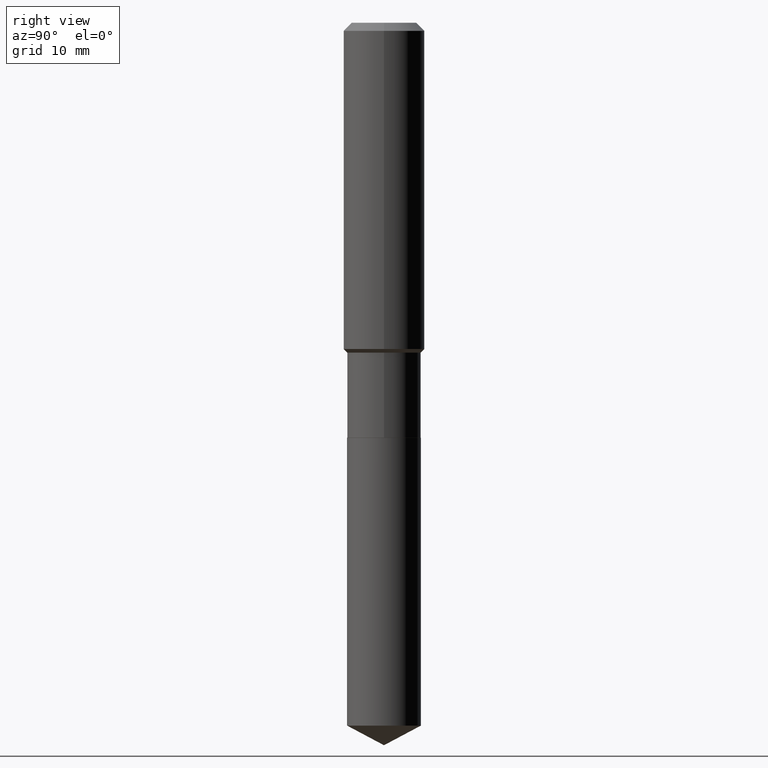
[diagram: clean part render]
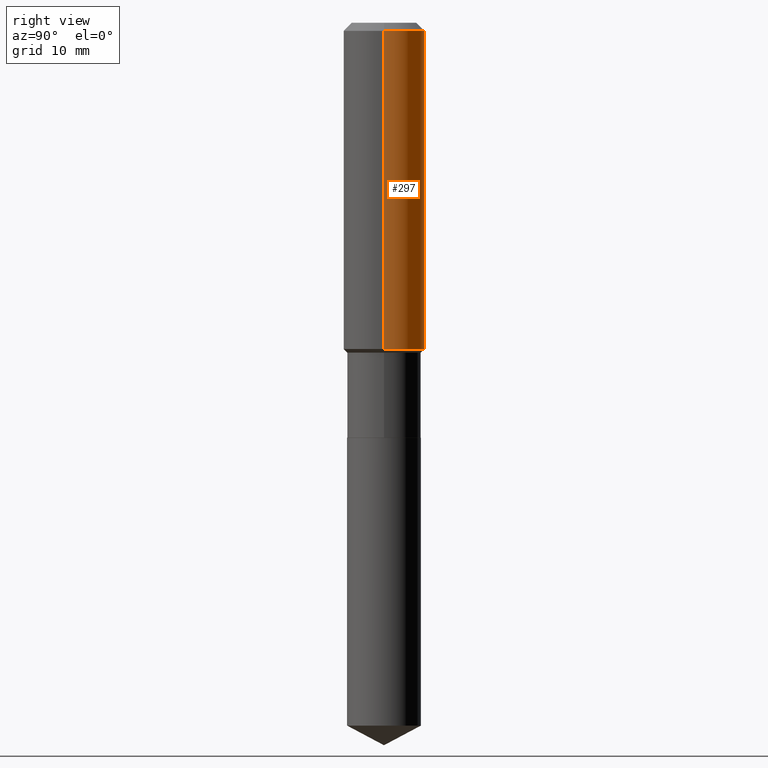
[diagram: same view with one face highlighted and labeled with its STEP entity id]
A machine part, right view. The second image highlights one B-rep face of the part: STEP entity #297.
In plain terms, the highlighted cylindrical surface (partial cylindrical patch) has radius 5 mm, axis along (-0, 0, 1).
Its self-contained STEP definition (entity closure, byte-faithful):
#5 = CARTESIAN_POINT ( 'NONE',  ( -0.1968500000000002192, -4.125169250839980741E-15, -1.582099999999999840 ) ) ;
#14 = AXIS2_PLACEMENT_3D ( 'NONE', #429, #324, #79 ) ;
#27 = VERTEX_POINT ( 'NONE', #322 ) ;
#55 = EDGE_CURVE ( 'NONE', #185, #351, #391, .T. ) ;
#67 = DIRECTION ( 'NONE',  ( -2.445468806185136877E-29, 3.491481338843145188E-15, 1.000000000000000000 ) ) ;
#70 = VECTOR ( 'NONE', #166, 39.37007874015748143 ) ;
#76 = LINE ( 'NONE', #281, #70 ) ;
#79 = DIRECTION ( 'NONE',  ( 1.000000000000000000, -6.982962677686265922E-15, 0.000000000000000000 ) ) ;
#80 = DIRECTION ( 'NONE',  ( -2.445468806185136597E-29, 3.491481338843145583E-15, 1.000000000000000000 ) ) ;
#85 = ORIENTED_EDGE ( 'NONE', *, *, #252, .F. ) ;
#87 = EDGE_CURVE ( 'NONE', #185, #27, #302, .T. ) ;
#100 = CARTESIAN_POINT ( 'NONE',  ( -0.1968500000000000250, -1.431962747903239464E-15, -0.03937000000000029365 ) ) ;
#107 = CARTESIAN_POINT ( 'NONE',  ( 0.1968500000000001082, -1.374596203102542397E-15, 9.598753983154305062E-30 ) ) ;
#157 = EDGE_LOOP ( 'NONE', ( #383, #235, #85, #325 ) ) ;
#166 = DIRECTION ( 'NONE',  ( -2.445468806185136877E-29, 3.491481338843145188E-15, 1.000000000000000000 ) ) ;
#170 = VERTEX_POINT ( 'NONE', #100 ) ;
#181 = DIRECTION ( 'NONE',  ( -2.445468806185136597E-29, 3.491481338843145583E-15, 1.000000000000000000 ) ) ;
#185 = VERTEX_POINT ( 'NONE', #345 ) ;
#234 = CIRCLE ( 'NONE', #14, 0.1968500000000000250 ) ;
#235 = ORIENTED_EDGE ( 'NONE', *, *, #273, .T. ) ;
#239 = DIRECTION ( 'NONE',  ( 1.000000000000000000, -6.982962677686265922E-15, 0.000000000000000000 ) ) ;
#252 = EDGE_CURVE ( 'NONE', #27, #170, #234, .T. ) ;
#273 = EDGE_CURVE ( 'NONE', #351, #170, #76, .T. ) ;
#281 = CARTESIAN_POINT ( 'NONE',  ( -0.1968500000000001082, 1.398703375343757985E-15, -9.682923725166787881E-30 ) ) ;
#297 = ADVANCED_FACE ( 'NONE', ( #374 ), #298, .T. ) ;
#298 = CYLINDRICAL_SURFACE ( 'NONE', #441, 0.1968500000000001082 ) ;
#302 = LINE ( 'NONE', #107, #341 ) ;
#307 = CARTESIAN_POINT ( 'NONE',  ( 0.000000000000000000, 0.000000000000000000, 0.000000000000000000 ) ) ;
#310 = DIRECTION ( 'NONE',  ( 1.000000000000000000, -6.982962677686266711E-15, 4.876176775795935793E-29 ) ) ;
#322 = CARTESIAN_POINT ( 'NONE',  ( 0.1968500000000000250, -1.512055823412797189E-15, -0.03937000000000029365 ) ) ;
#324 = DIRECTION ( 'NONE',  ( -2.445468806185136597E-29, 3.491481338843145583E-15, 1.000000000000000000 ) ) ;
#325 = ORIENTED_EDGE ( 'NONE', *, *, #87, .F. ) ;
#341 = VECTOR ( 'NONE', #67, 39.37007874015748143 ) ;
#345 = CARTESIAN_POINT ( 'NONE',  ( 0.1968500000000002192, -6.898468829286282504E-15, -1.582099999999999840 ) ) ;
#351 = VERTEX_POINT ( 'NONE', #5 ) ;
#374 = FACE_OUTER_BOUND ( 'NONE', #157, .T. ) ;
#383 = ORIENTED_EDGE ( 'NONE', *, *, #55, .T. ) ;
#391 = CIRCLE ( 'NONE', #401, 0.1968500000000002192 ) ;
#401 = AXIS2_PLACEMENT_3D ( 'NONE', #466, #80, #239 ) ;
#429 = CARTESIAN_POINT ( 'NONE',  ( 9.627810689950954155E-31, -1.374596203102556547E-16, -0.03937000000000029365 ) ) ;
#441 = AXIS2_PLACEMENT_3D ( 'NONE', #307, #181, #310 ) ;
#466 = CARTESIAN_POINT ( 'NONE',  ( 3.868976198265503885E-29, -5.523872626183740107E-15, -1.582099999999999840 ) ) ;